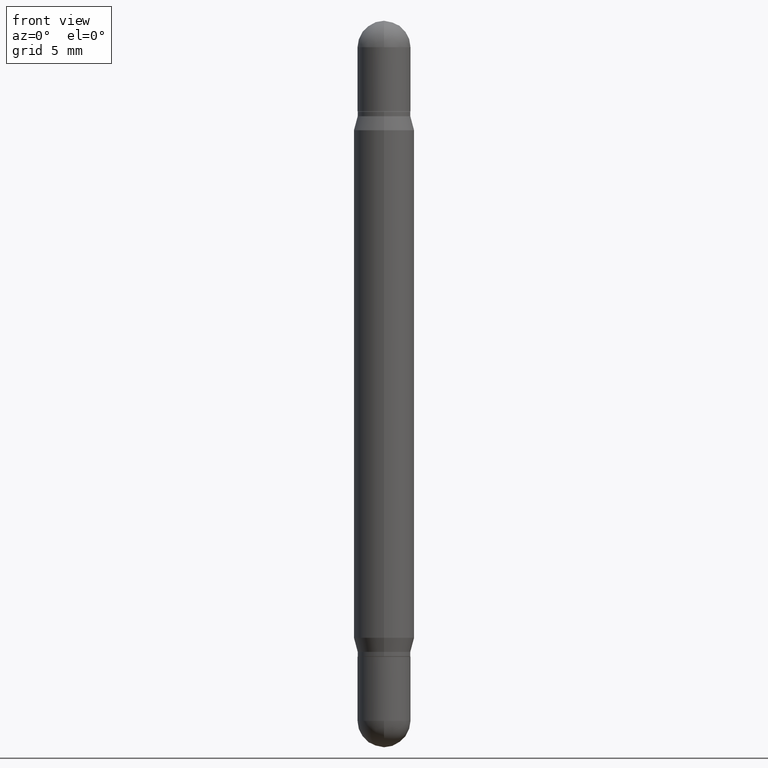
[diagram: clean part render]
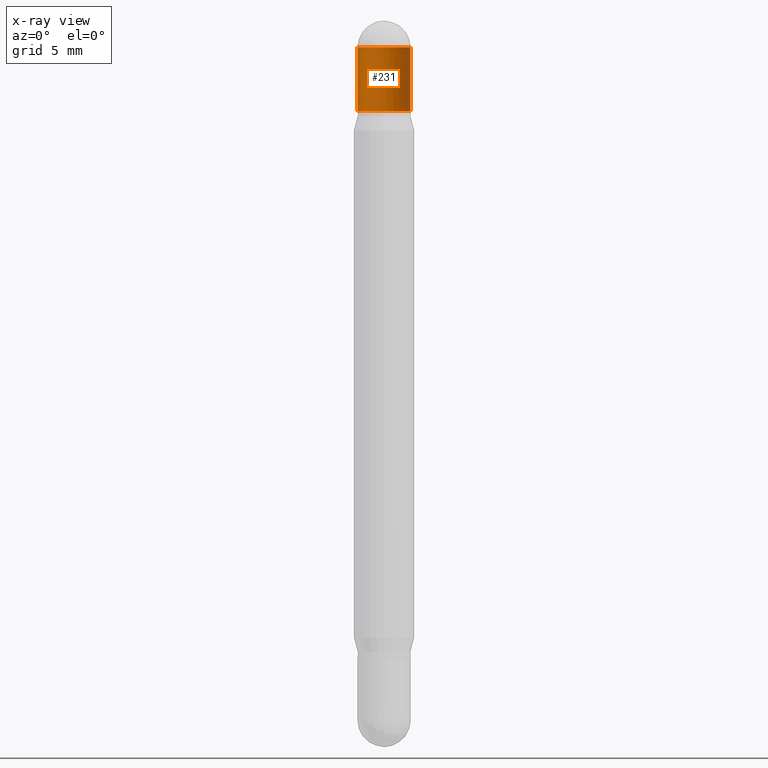
[diagram: x-ray — body ghosted, one internal face saturated and labeled with its STEP entity id]
A machine part, front view, then the same camera in x-ray: the body is ghosted and one INTERNAL B-rep face — a face not visible from any outside direction — is saturated and labeled: STEP entity #231.
In plain terms, the highlighted cylindrical surface (edge-blend (fillet) strip) has radius 1.3894 mm, axis along (-0, -0, -1).
Its self-contained STEP definition (entity closure, byte-faithful):
#151 = CARTESIAN_POINT ( 'NONE',  ( 3.534436065579377749E-29, -1.992350652426753183E-16, -0.05470000000000037332 ) ) ;
#167 = CARTESIAN_POINT ( 'NONE',  ( -0.05469999999999999862, -5.414232175515661906E-17, -0.1870000000000002216 ) ) ;
#208 = CARTESIAN_POINT ( 'NONE',  ( 3.752692404781387717E-16, 0.05469999999999989454, -0.05470000000000056067 ) ) ;
#209 = ORIENTED_EDGE ( 'NONE', *, *, #699, .T. ) ;
#231 = ADVANCED_FACE ( 'NONE', ( #565 ), #780, .T. ) ;
#238 = ORIENTED_EDGE ( 'NONE', *, *, #1106, .F. ) ;
#258 = CARTESIAN_POINT ( 'NONE',  ( -0.05470000000000000556, -5.414232175515625545E-17, -0.05470000000000037332 ) ) ;
#273 = VERTEX_POINT ( 'NONE', #258 ) ;
#275 = VERTEX_POINT ( 'NONE', #603 ) ;
#286 = CARTESIAN_POINT ( 'NONE',  ( 0.05469999999999999862, -5.610289912835170741E-15, -1.500000000000000444 ) ) ;
#335 = DIRECTION ( 'NONE',  ( 1.000000000000000000, -6.982962677686268288E-15, 0.000000000000000000 ) ) ;
#361 = VECTOR ( 'NONE', #671, 39.37007874015748143 ) ;
#396 = VERTEX_POINT ( 'NONE', #405 ) ;
#402 = EDGE_CURVE ( 'NONE', #273, #949, #832, .T. ) ;
#405 = CARTESIAN_POINT ( 'NONE',  ( 0.05469999999999999862, -1.041556117693281390E-15, -0.1870000000000002216 ) ) ;
#413 = CIRCLE ( 'NONE', #880, 0.05470000000000000556 ) ;
#440 = CARTESIAN_POINT ( 'NONE',  ( 0.000000000000000000, -5.228321854365732350E-15, -1.500000000000000444 ) ) ;
#458 = DIRECTION ( 'NONE',  ( -2.445468806185136877E-29, -3.479614466977828648E-15, -1.000000000000000000 ) ) ;
#497 = EDGE_CURVE ( 'NONE', #750, #273, #521, .T. ) ;
#521 = CIRCLE ( 'NONE', #706, 0.05470000000000000556 ) ;
#538 = DIRECTION ( 'NONE',  ( -2.445468806185136597E-29, -3.479614466977828254E-15, -1.000000000000000000 ) ) ;
#565 = FACE_OUTER_BOUND ( 'NONE', #946, .T. ) ;
#587 = AXIS2_PLACEMENT_3D ( 'NONE', #865, #668, #927 ) ;
#590 = AXIS2_PLACEMENT_3D ( 'NONE', #440, #538, #688 ) ;
#603 = CARTESIAN_POINT ( 'NONE',  ( 0.05470000000000000556, -8.113796207026979199E-16, -0.05470000000000037332 ) ) ;
#668 = DIRECTION ( 'NONE',  ( 2.445468806185136597E-29, 3.479614466977828254E-15, 1.000000000000000000 ) ) ;
#671 = DIRECTION ( 'NONE',  ( -2.445468806185136877E-29, -3.479614466977828648E-15, -1.000000000000000000 ) ) ;
#688 = DIRECTION ( 'NONE',  ( 1.000000000000000000, -6.982962677686260400E-15, 0.000000000000000000 ) ) ;
#699 = EDGE_CURVE ( 'NONE', #275, #396, #875, .T. ) ;
#706 = AXIS2_PLACEMENT_3D ( 'NONE', #151, #767, #335 ) ;
#708 = CARTESIAN_POINT ( 'NONE',  ( 3.534436065579377749E-29, -1.992350652426753183E-16, -0.05470000000000037332 ) ) ;
#715 = DIRECTION ( 'NONE',  ( 2.445468806185136597E-29, 3.479614466977828254E-15, 1.000000000000000000 ) ) ;
#750 = VERTEX_POINT ( 'NONE', #208 ) ;
#767 = DIRECTION ( 'NONE',  ( 2.445468806185136597E-29, 3.479614466977828254E-15, 1.000000000000000000 ) ) ;
#780 = CYLINDRICAL_SURFACE ( 'NONE', #590, 0.05469999999999999862 ) ;
#802 = DIRECTION ( 'NONE',  ( 1.000000000000000000, -6.982962677686268288E-15, 0.000000000000000000 ) ) ;
#832 = LINE ( 'NONE', #1001, #361 ) ;
#865 = CARTESIAN_POINT ( 'NONE',  ( 3.210900542521084585E-29, -6.595880592238425060E-16, -0.1870000000000002216 ) ) ;
#875 = LINE ( 'NONE', #286, #1006 ) ;
#880 = AXIS2_PLACEMENT_3D ( 'NONE', #708, #715, #802 ) ;
#927 = DIRECTION ( 'NONE',  ( 1.000000000000000000, -6.982962677686266711E-15, 0.000000000000000000 ) ) ;
#930 = ORIENTED_EDGE ( 'NONE', *, *, #402, .F. ) ;
#946 = EDGE_LOOP ( 'NONE', ( #930, #1031, #238, #209, #1056 ) ) ;
#949 = VERTEX_POINT ( 'NONE', #167 ) ;
#1001 = CARTESIAN_POINT ( 'NONE',  ( -0.05469999999999999862, -4.853052613887629372E-15, -1.500000000000000444 ) ) ;
#1006 = VECTOR ( 'NONE', #458, 39.37007874015748143 ) ;
#1031 = ORIENTED_EDGE ( 'NONE', *, *, #497, .F. ) ;
#1056 = ORIENTED_EDGE ( 'NONE', *, *, #1091, .T. ) ;
#1091 = EDGE_CURVE ( 'NONE', #396, #949, #1098, .T. ) ;
#1098 = CIRCLE ( 'NONE', #587, 0.05469999999999999862 ) ;
#1106 = EDGE_CURVE ( 'NONE', #275, #750, #413, .T. ) ;